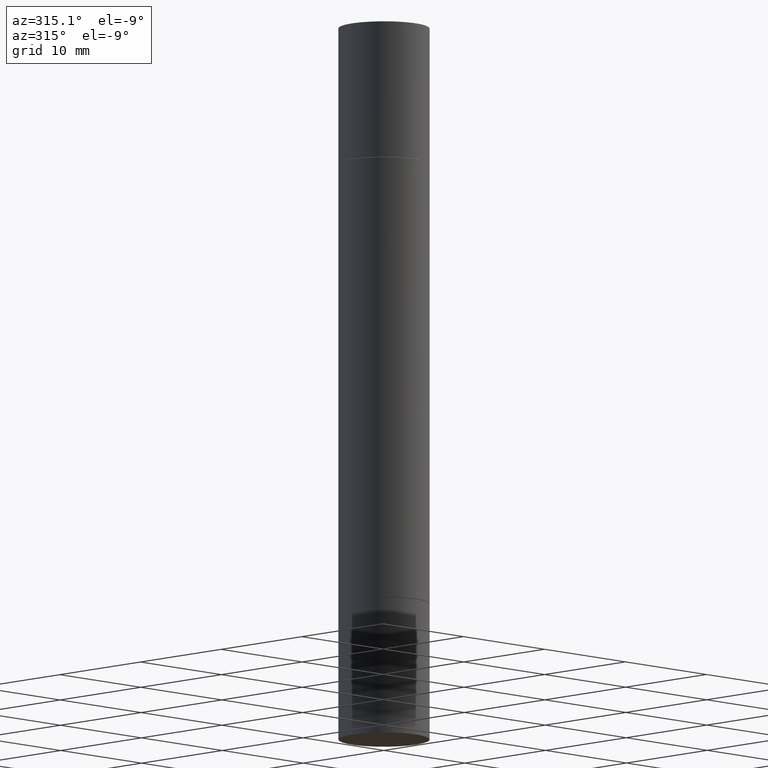
[diagram: clean part render]
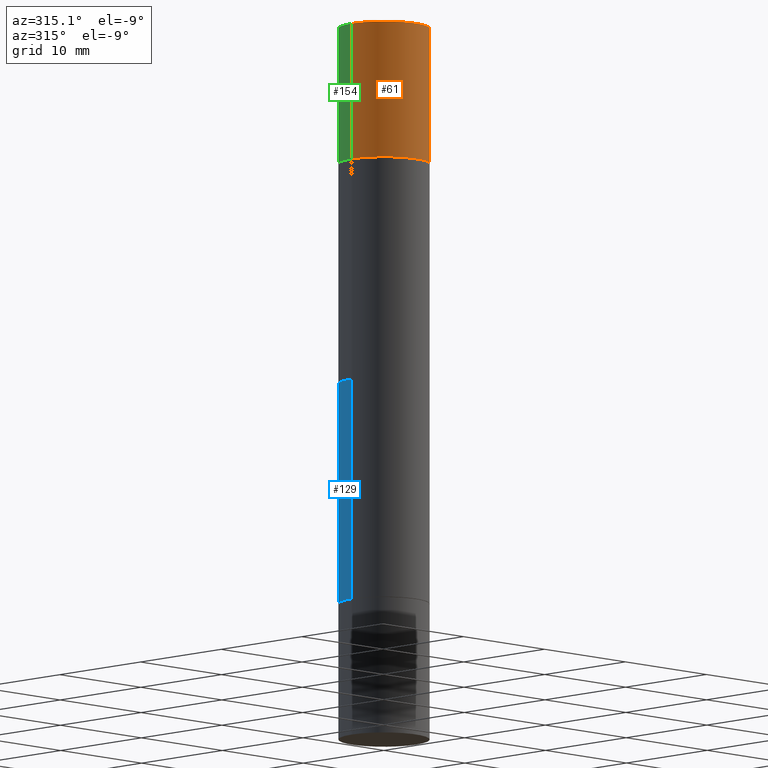
[diagram: same view with three faces highlighted in distinct colors, each labeled with its STEP entity id]
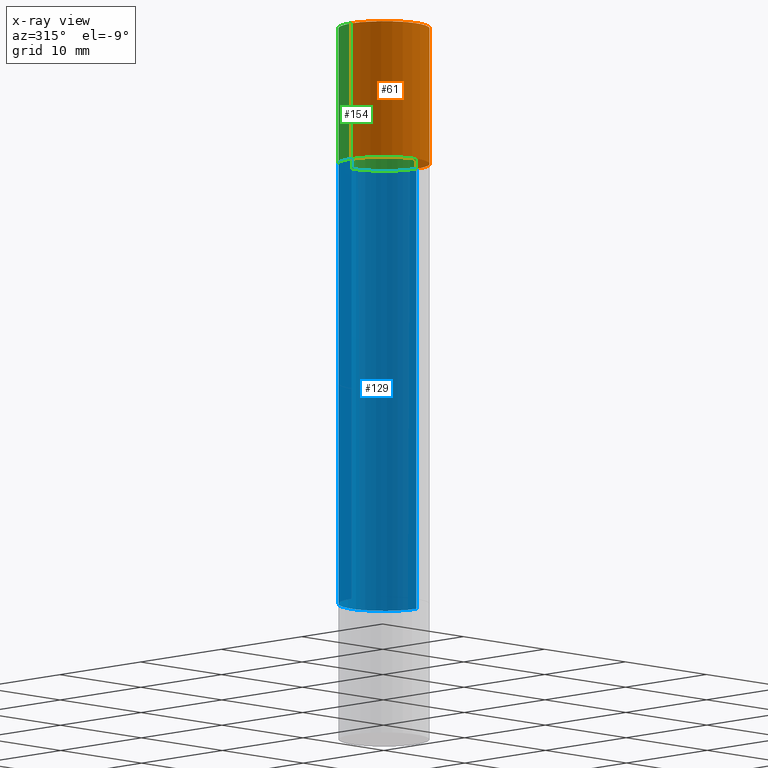
[diagram: x-ray of the same camera — body ghosted, the three highlighted faces saturated]
A machine part, auxiliary view with three faces highlighted in distinct colors.
The next image is the same camera in x-ray (body ghosted, the three faces saturated) — at least one of them is partly hidden behind the body in this view.
Their STEP definitions:

[orange] entity #61 — the highlighted cylindrical surface (partial cylindrical patch) has radius 4.0005 mm, axis along (-0, -0, -1).
#1 = AXIS2_PLACEMENT_3D ( 'NONE', #396, #657, #606 ) ;
#3 = CIRCLE ( 'NONE', #155, 0.1575000000000000011 ) ;
#10 = VECTOR ( 'NONE', #134, 39.37007874015748143 ) ;
#61 = ADVANCED_FACE ( 'NONE', ( #662 ), #118, .T. ) ;
#62 = CARTESIAN_POINT ( 'NONE',  ( -0.1575000000000000011, 2.572551809600735932E-16, -0.4723999999999995980 ) ) ;
#83 = DIRECTION ( 'NONE',  ( 2.445468806185136597E-29, 3.492890411551752677E-15, 1.000000000000000000 ) ) ;
#118 = CYLINDRICAL_SURFACE ( 'NONE', #1, 0.1575000000000000011 ) ;
#125 = EDGE_CURVE ( 'NONE', #529, #264, #613, .T. ) ;
#134 = DIRECTION ( 'NONE',  ( -2.445468806185136877E-29, -3.492890411551753071E-15, -1.000000000000000000 ) ) ;
#139 = CARTESIAN_POINT ( 'NONE',  ( 0.1575000000000000011, -9.761485247987819407E-15, -2.480299999999999727 ) ) ;
#142 = VECTOR ( 'NONE', #511, 39.37007874015748143 ) ;
#149 = CARTESIAN_POINT ( 'NONE',  ( 0.1575000000000000011, -1.098069160216006353E-15, 5.463695987328526437E-16 ) ) ;
#153 = CIRCLE ( 'NONE', #554, 0.1575000000000000011 ) ;
#155 = AXIS2_PLACEMENT_3D ( 'NONE', #304, #192, #256 ) ;
#189 = EDGE_CURVE ( 'NONE', #538, #529, #153, .T. ) ;
#192 = DIRECTION ( 'NONE',  ( 2.445468806185136597E-29, 3.492890411551752677E-15, 1.000000000000000000 ) ) ;
#251 = CARTESIAN_POINT ( 'NONE',  ( -0.1575000000000000011, 2.572551809600735932E-16, 5.463695987328556019E-16 ) ) ;
#256 = DIRECTION ( 'NONE',  ( 1.000000000000000000, -6.982962677686268288E-15, 0.000000000000000000 ) ) ;
#264 = VERTEX_POINT ( 'NONE', #548 ) ;
#296 = CARTESIAN_POINT ( 'NONE',  ( -0.1575000000000000011, -7.581140191603215359E-15, -2.480299999999999727 ) ) ;
#299 = VERTEX_POINT ( 'NONE', #62 ) ;
#304 = CARTESIAN_POINT ( 'NONE',  ( 4.910256815939136430E-29, -1.648293968897467768E-15, -0.4723999999999995980 ) ) ;
#341 = CARTESIAN_POINT ( 'NONE',  ( 6.065496279980994755E-29, 1.747461519580534218E-18, 5.463695987328526437E-16 ) ) ;
#396 = CARTESIAN_POINT ( 'NONE',  ( 0.000000000000000000, -8.661668626252231138E-15, -2.480299999999999727 ) ) ;
#404 = LINE ( 'NONE', #296, #142 ) ;
#405 = DIRECTION ( 'NONE',  ( 1.000000000000000000, -6.982962677686265922E-15, 0.000000000000000000 ) ) ;
#447 = EDGE_CURVE ( 'NONE', #538, #299, #404, .T. ) ;
#465 = ORIENTED_EDGE ( 'NONE', *, *, #532, .T. ) ;
#510 = EDGE_LOOP ( 'NONE', ( #550, #635, #465, #588 ) ) ;
#511 = DIRECTION ( 'NONE',  ( -2.445468806185136877E-29, -3.492890411551753071E-15, -1.000000000000000000 ) ) ;
#529 = VERTEX_POINT ( 'NONE', #149 ) ;
#532 = EDGE_CURVE ( 'NONE', #299, #264, #3, .T. ) ;
#538 = VERTEX_POINT ( 'NONE', #251 ) ;
#548 = CARTESIAN_POINT ( 'NONE',  ( 0.1575000000000000011, -2.748110590633054853E-15, -0.4723999999999995980 ) ) ;
#550 = ORIENTED_EDGE ( 'NONE', *, *, #189, .F. ) ;
#554 = AXIS2_PLACEMENT_3D ( 'NONE', #341, #83, #405 ) ;
#588 = ORIENTED_EDGE ( 'NONE', *, *, #125, .F. ) ;
#606 = DIRECTION ( 'NONE',  ( 1.000000000000000000, -6.982962677686268288E-15, 0.000000000000000000 ) ) ;
#613 = LINE ( 'NONE', #139, #10 ) ;
#635 = ORIENTED_EDGE ( 'NONE', *, *, #447, .T. ) ;
#657 = DIRECTION ( 'NONE',  ( -2.445468806185136597E-29, -3.492890411551752677E-15, -1.000000000000000000 ) ) ;
#662 = FACE_OUTER_BOUND ( 'NONE', #510, .T. ) ;

[blue] entity #129 — the highlighted cylindrical surface (partial cylindrical patch) has radius 4.0005 mm, axis along (-0, -0, -1).
#81 = DIRECTION ( 'NONE',  ( 1.000000000000000000, -6.982962677686268288E-15, 0.000000000000000000 ) ) ;
#91 = LINE ( 'NONE', #486, #391 ) ;
#103 = ORIENTED_EDGE ( 'NONE', *, *, #433, .F. ) ;
#115 = ORIENTED_EDGE ( 'NONE', *, *, #116, .T. ) ;
#116 = EDGE_CURVE ( 'NONE', #546, #494, #91, .T. ) ;
#121 = DIRECTION ( 'NONE',  ( -2.445468806185136597E-29, 3.491481338843145583E-15, 1.000000000000000000 ) ) ;
#129 = ADVANCED_FACE ( 'NONE', ( #664 ), #520, .T. ) ;
#136 = CARTESIAN_POINT ( 'NONE',  ( 0.1575000000000000011, -8.106870520659896184E-15, -2.006899999999999906 ) ) ;
#141 = AXIS2_PLACEMENT_3D ( 'NONE', #231, #121, #165 ) ;
#165 = DIRECTION ( 'NONE',  ( 1.000000000000000000, -6.982962677686268288E-15, 0.000000000000000000 ) ) ;
#185 = CARTESIAN_POINT ( 'NONE',  ( -0.1574999999999998901, -7.581140191603216936E-15, -2.480299999999999727 ) ) ;
#219 = ORIENTED_EDGE ( 'NONE', *, *, #253, .T. ) ;
#231 = CARTESIAN_POINT ( 'NONE',  ( 4.907811347132950827E-29, -7.007053898924308703E-15, -2.006899999999999906 ) ) ;
#249 = DIRECTION ( 'NONE',  ( 1.000000000000000000, -6.982962677686261189E-15, 0.000000000000000000 ) ) ;
#253 = EDGE_CURVE ( 'NONE', #494, #517, #626, .T. ) ;
#287 = AXIS2_PLACEMENT_3D ( 'NONE', #397, #348, #81 ) ;
#331 = EDGE_LOOP ( 'NONE', ( #103, #424, #115, #219 ) ) ;
#348 = DIRECTION ( 'NONE',  ( 2.445468806185136597E-29, 3.492890411551752677E-15, 1.000000000000000000 ) ) ;
#352 = DIRECTION ( 'NONE',  ( -2.445468806185136597E-29, -3.492890411551752677E-15, -1.000000000000000000 ) ) ;
#369 = AXIS2_PLACEMENT_3D ( 'NONE', #659, #352, #249 ) ;
#371 = VECTOR ( 'NONE', #394, 39.37007874015748143 ) ;
#378 = DIRECTION ( 'NONE',  ( -2.445468806185136877E-29, -3.492890411551753071E-15, -1.000000000000000000 ) ) ;
#384 = EDGE_CURVE ( 'NONE', #546, #478, #589, .T. ) ;
#391 = VECTOR ( 'NONE', #378, 39.37007874015748143 ) ;
#394 = DIRECTION ( 'NONE',  ( -2.445468806185136877E-29, -3.492890411551753071E-15, -1.000000000000000000 ) ) ;
#397 = CARTESIAN_POINT ( 'NONE',  ( 4.907811347132950827E-29, -1.651786859309018332E-15, -0.4733999999999996544 ) ) ;
#412 = CARTESIAN_POINT ( 'NONE',  ( -0.1575000000000000011, -3.249432147717308339E-15, -2.006899999999999906 ) ) ;
#424 = ORIENTED_EDGE ( 'NONE', *, *, #384, .F. ) ;
#433 = EDGE_CURVE ( 'NONE', #478, #517, #653, .T. ) ;
#466 = CARTESIAN_POINT ( 'NONE',  ( 0.1575000000000000011, -2.751603481044606995E-15, -0.4733999999999996544 ) ) ;
#478 = VERTEX_POINT ( 'NONE', #675 ) ;
#486 = CARTESIAN_POINT ( 'NONE',  ( 0.1574999999999998901, -9.761485247987817829E-15, -2.480299999999999727 ) ) ;
#494 = VERTEX_POINT ( 'NONE', #136 ) ;
#517 = VERTEX_POINT ( 'NONE', #412 ) ;
#520 = CYLINDRICAL_SURFACE ( 'NONE', #369, 0.1574999999999998901 ) ;
#546 = VERTEX_POINT ( 'NONE', #466 ) ;
#589 = CIRCLE ( 'NONE', #287, 0.1575000000000000011 ) ;
#626 = CIRCLE ( 'NONE', #141, 0.1575000000000000011 ) ;
#653 = LINE ( 'NONE', #185, #371 ) ;
#659 = CARTESIAN_POINT ( 'NONE',  ( 0.000000000000000000, -8.661668626252231138E-15, -2.480299999999999727 ) ) ;
#664 = FACE_OUTER_BOUND ( 'NONE', #331, .T. ) ;
#675 = CARTESIAN_POINT ( 'NONE',  ( -0.1575000000000000011, -5.712584246600035385E-16, -0.4733999999999996544 ) ) ;

[green] entity #154 — the highlighted cylindrical surface (partial cylindrical patch) has radius 4.0005 mm, axis along (-0, -0, -1).
#10 = VECTOR ( 'NONE', #134, 39.37007874015748143 ) ;
#57 = ORIENTED_EDGE ( 'NONE', *, *, #125, .T. ) ;
#60 = CIRCLE ( 'NONE', #233, 0.1575000000000000011 ) ;
#62 = CARTESIAN_POINT ( 'NONE',  ( -0.1575000000000000011, 2.572551809600735932E-16, -0.4723999999999995980 ) ) ;
#76 = DIRECTION ( 'NONE',  ( 1.000000000000000000, -6.982962677686265922E-15, 0.000000000000000000 ) ) ;
#88 = DIRECTION ( 'NONE',  ( 1.000000000000000000, -6.982962677686268288E-15, 0.000000000000000000 ) ) ;
#90 = CARTESIAN_POINT ( 'NONE',  ( 4.910256815939136430E-29, -1.648293968897467768E-15, -0.4723999999999995980 ) ) ;
#97 = ORIENTED_EDGE ( 'NONE', *, *, #447, .F. ) ;
#125 = EDGE_CURVE ( 'NONE', #529, #264, #613, .T. ) ;
#134 = DIRECTION ( 'NONE',  ( -2.445468806185136877E-29, -3.492890411551753071E-15, -1.000000000000000000 ) ) ;
#139 = CARTESIAN_POINT ( 'NONE',  ( 0.1575000000000000011, -9.761485247987819407E-15, -2.480299999999999727 ) ) ;
#142 = VECTOR ( 'NONE', #511, 39.37007874015748143 ) ;
#149 = CARTESIAN_POINT ( 'NONE',  ( 0.1575000000000000011, -1.098069160216006353E-15, 5.463695987328526437E-16 ) ) ;
#154 = ADVANCED_FACE ( 'NONE', ( #183 ), #507, .T. ) ;
#178 = AXIS2_PLACEMENT_3D ( 'NONE', #460, #665, #88 ) ;
#183 = FACE_OUTER_BOUND ( 'NONE', #303, .T. ) ;
#213 = EDGE_CURVE ( 'NONE', #529, #538, #257, .T. ) ;
#233 = AXIS2_PLACEMENT_3D ( 'NONE', #90, #463, #667 ) ;
#251 = CARTESIAN_POINT ( 'NONE',  ( -0.1575000000000000011, 2.572551809600735932E-16, 5.463695987328556019E-16 ) ) ;
#257 = CIRCLE ( 'NONE', #569, 0.1575000000000000011 ) ;
#264 = VERTEX_POINT ( 'NONE', #548 ) ;
#296 = CARTESIAN_POINT ( 'NONE',  ( -0.1575000000000000011, -7.581140191603215359E-15, -2.480299999999999727 ) ) ;
#299 = VERTEX_POINT ( 'NONE', #62 ) ;
#303 = EDGE_LOOP ( 'NONE', ( #97, #680, #57, #570 ) ) ;
#404 = LINE ( 'NONE', #296, #142 ) ;
#447 = EDGE_CURVE ( 'NONE', #538, #299, #404, .T. ) ;
#460 = CARTESIAN_POINT ( 'NONE',  ( 0.000000000000000000, -8.661668626252231138E-15, -2.480299999999999727 ) ) ;
#463 = DIRECTION ( 'NONE',  ( 2.445468806185136597E-29, 3.492890411551752677E-15, 1.000000000000000000 ) ) ;
#507 = CYLINDRICAL_SURFACE ( 'NONE', #178, 0.1575000000000000011 ) ;
#509 = CARTESIAN_POINT ( 'NONE',  ( 6.065496279980994755E-29, 1.747461519580534218E-18, 5.463695987328526437E-16 ) ) ;
#511 = DIRECTION ( 'NONE',  ( -2.445468806185136877E-29, -3.492890411551753071E-15, -1.000000000000000000 ) ) ;
#529 = VERTEX_POINT ( 'NONE', #149 ) ;
#538 = VERTEX_POINT ( 'NONE', #251 ) ;
#548 = CARTESIAN_POINT ( 'NONE',  ( 0.1575000000000000011, -2.748110590633054853E-15, -0.4723999999999995980 ) ) ;
#569 = AXIS2_PLACEMENT_3D ( 'NONE', #509, #655, #76 ) ;
#570 = ORIENTED_EDGE ( 'NONE', *, *, #576, .T. ) ;
#576 = EDGE_CURVE ( 'NONE', #264, #299, #60, .T. ) ;
#613 = LINE ( 'NONE', #139, #10 ) ;
#655 = DIRECTION ( 'NONE',  ( 2.445468806185136597E-29, 3.492890411551752677E-15, 1.000000000000000000 ) ) ;
#665 = DIRECTION ( 'NONE',  ( -2.445468806185136597E-29, -3.492890411551752677E-15, -1.000000000000000000 ) ) ;
#667 = DIRECTION ( 'NONE',  ( 1.000000000000000000, -6.982962677686268288E-15, 0.000000000000000000 ) ) ;
#680 = ORIENTED_EDGE ( 'NONE', *, *, #213, .F. ) ;